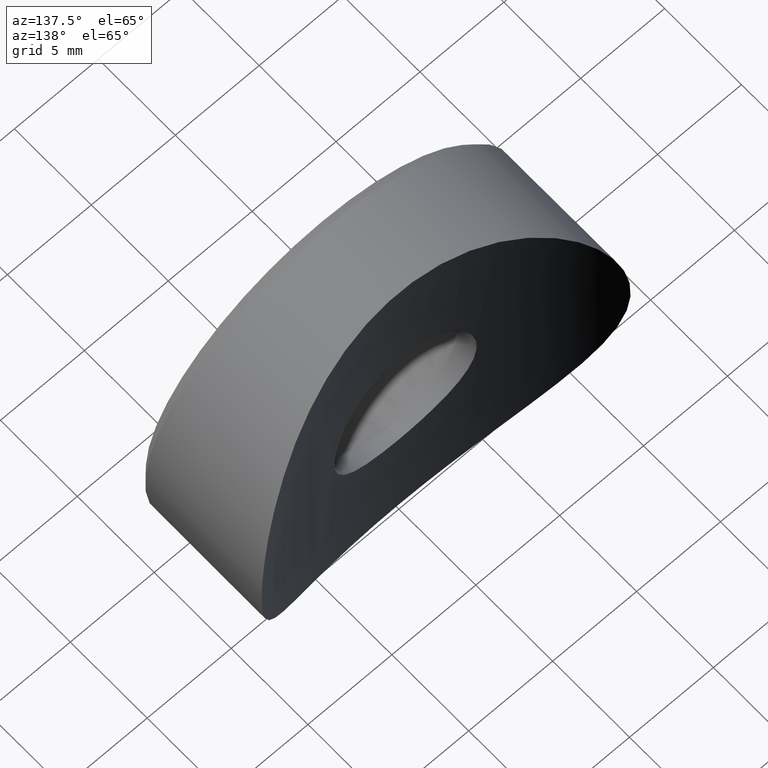
[diagram: clean part render]
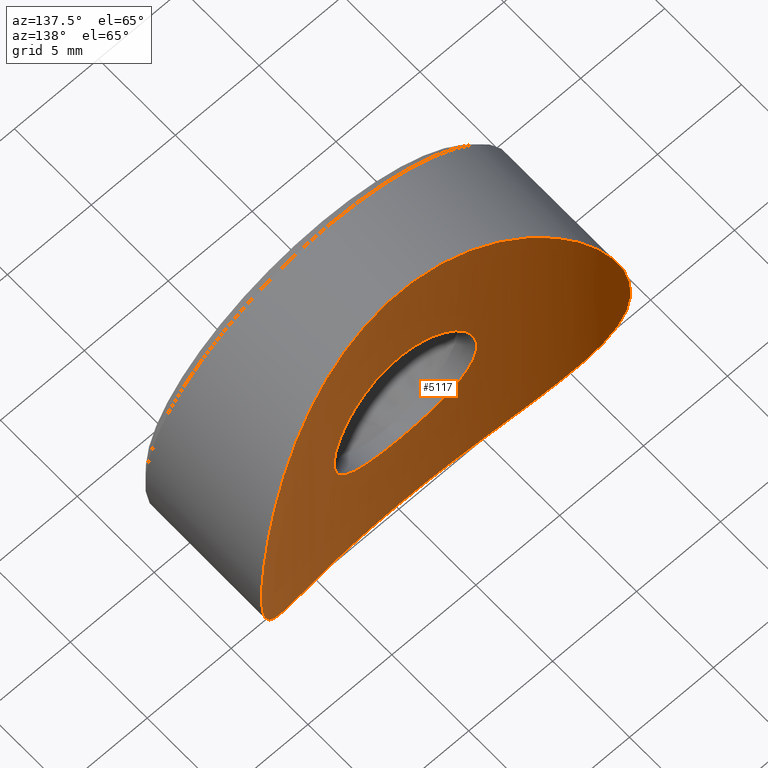
[diagram: same view with one face highlighted and labeled with its STEP entity id]
A machine part, auxiliary view. The second image highlights one B-rep face of the part: STEP entity #5117.
In plain terms, the highlighted cylindrical surface (partial cylindrical patch) has radius 21.2 mm, axis along (-0, -0, 1).
Its self-contained STEP definition (entity closure, byte-faithful):
#57 = CARTESIAN_POINT ( 'NONE',  ( 2.810210554180509579, 5.186154573832988390, -3.200255997920374629 ) ) ;
#64 = CARTESIAN_POINT ( 'NONE',  ( 0.7406937009818306272, 5.000000000000000888, -11.00000000000000000 ) ) ;
#105 = CARTESIAN_POINT ( 'NONE',  ( -10.98398630777729501, 8.067328638044862998, -0.6980624500910832531 ) ) ;
#151 = CARTESIAN_POINT ( 'NONE',  ( 3.819725345298614183, 5.346666967095663026, 1.884146675043101293 ) ) ;
#193 = CARTESIAN_POINT ( 'NONE',  ( -0.5525578668103006130, 5.005411021145239836, 4.223266058465389605 ) ) ;
#255 = CARTESIAN_POINT ( 'NONE',  ( -10.62777386024006887, 7.855522252781230286, 2.931035171921014371 ) ) ;
#261 = CARTESIAN_POINT ( 'NONE',  ( -0.3304821063437383133, 4.999424213438067532, 11.00110970196394433 ) ) ;
#425 = CARTESIAN_POINT ( 'NONE',  ( 8.030741142240314545, 6.578107402731796505, -7.525357395938277350 ) ) ;
#470 = CARTESIAN_POINT ( 'NONE',  ( 11.00093997453022254, 8.077656857097265330, 0.3368348829577760273 ) ) ;
#538 = CARTESIAN_POINT ( 'NONE',  ( -4.249801277299170899, 5.430330066556780189, 0.2836326168942768233 ) ) ;
#562 = CARTESIAN_POINT ( 'NONE',  ( 10.70620333068208119, 7.901795306539453279, -2.551291724373591752 ) ) ;
#582 = CARTESIAN_POINT ( 'NONE',  ( -2.598455551036930267, 5.158544096963465719, -3.374758883897539974 ) ) ;
#693 = CARTESIAN_POINT ( 'NONE',  ( 8.945724061720213172, 6.978607076919857377, 6.410945904303895659 ) ) ;
#727 = CARTESIAN_POINT ( 'NONE',  ( -10.97975971317067412, 8.064764334188854633, 0.7603854165196879400 ) ) ;
#1066 = CARTESIAN_POINT ( 'NONE',  ( 1.102370467402856269, 5.026929500373567450, -4.113907872993309844 ) ) ;
#1075 = FACE_OUTER_BOUND ( 'NONE', #7938, .T. ) ;
#1111 = CARTESIAN_POINT ( 'NONE',  ( 4.113202836554016528, 5.402772338602679802, -1.105615089143639818 ) ) ;
#1137 = CARTESIAN_POINT ( 'NONE',  ( 0.000000000000000000, 26.20000000000000284, -11.00000000000000000 ) ) ;
#1149 = ORIENTED_EDGE ( 'NONE', *, *, #3998, .T. ) ;
#1207 = CARTESIAN_POINT ( 'NONE',  ( 2.808420016093003291, 5.185896099792188352, 3.202074843122579395 ) ) ;
#1245 = CARTESIAN_POINT ( 'NONE',  ( 3.686998261433509505, 5.322492604036392017, 2.131890990882719716 ) ) ;
#1248 = CARTESIAN_POINT ( 'NONE',  ( -10.91283529454353562, 8.024418805323666248, -1.430130143669122500 ) ) ;
#1297 = CARTESIAN_POINT ( 'NONE',  ( 5.550346600703138122, 5.730090092932976553, -9.523878002328917347 ) ) ;
#1315 = CARTESIAN_POINT ( 'NONE',  ( -0.6984263354874409302, 5.008300497339214452, 10.98403708423493619 ) ) ;
#1455 = CARTESIAN_POINT ( 'NONE',  ( 0.7661881482282912881, 5.001238617810880527, 10.99761283690917146 ) ) ;
#1535 = CARTESIAN_POINT ( 'NONE',  ( 10.98332523577125208, 8.066927278961861347, 0.7083942231674656975 ) ) ;
#1601 = CARTESIAN_POINT ( 'NONE',  ( -8.719913155160499585, 6.871335287458406604, 6.743054531945021246 ) ) ;
#1606 = CARTESIAN_POINT ( 'NONE',  ( -0.2815391734600665163, 4.999999999999998224, -4.249999999999998224 ) ) ;
#1629 = CARTESIAN_POINT ( 'NONE',  ( 10.91148235597395910, 8.023605628825722036, 1.440419524102471094 ) ) ;
#1651 = CARTESIAN_POINT ( 'NONE',  ( -2.133031478875639930, 5.106280212341133939, -3.686617078743818610 ) ) ;
#1897 = FACE_BOUND ( 'NONE', #3806, .T. ) ;
#1967 = CARTESIAN_POINT ( 'NONE',  ( -3.563249721100179457, 5.290356493343431055, 10.43230328524458095 ) ) ;
#2151 = CARTESIAN_POINT ( 'NONE',  ( -10.43203426849924575, 7.741589596595918721, -3.563010612061605631 ) ) ;
#2197 = CARTESIAN_POINT ( 'NONE',  ( 3.376762351218155711, 5.270062170342488805, -2.595765663345576790 ) ) ;
#2200 = CARTESIAN_POINT ( 'NONE',  ( -8.944118814454265376, 6.977865798376565287, -6.413131222837708201 ) ) ;
#2293 = CARTESIAN_POINT ( 'NONE',  ( 1.107707186172353309, 5.027194874037162364, 4.112548186397214423 ) ) ;
#2295 = CARTESIAN_POINT ( 'NONE',  ( -1.843148062856518443, 5.077194980460737028, -10.85066172779794869 ) ) ;
#2340 = CARTESIAN_POINT ( 'NONE',  ( 0.5615337841234564475, 5.005675950349724346, 4.221936475721169479 ) ) ;
#2362 = DIRECTION ( 'NONE',  ( -0.000000000000000000, -0.000000000000000000, 1.000000000000000000 ) ) ;
#2438 = CARTESIAN_POINT ( 'NONE',  ( 3.927775296252041581, 5.364277933268157383, -10.28115287264342825 ) ) ;
#2454 = DIRECTION ( 'NONE',  ( 1.000000000000000000, 0.000000000000000000, 0.000000000000000000 ) ) ;
#2529 = CARTESIAN_POINT ( 'NONE',  ( 7.272722023686278625, 6.284397407287936943, -8.260317905458878229 ) ) ;
#2592 = CARTESIAN_POINT ( 'NONE',  ( 3.617143603080511749, 5.307918549273324516, 10.39460299725860359 ) ) ;
#2667 = CARTESIAN_POINT ( 'NONE',  ( 10.61521084714543584, 7.848634096434105700, -2.906794945843087508 ) ) ;
#2691 = CARTESIAN_POINT ( 'NONE',  ( -4.031182700728252577, 5.386507250273369962, 1.374787350965278598 ) ) ;
#2716 = CARTESIAN_POINT ( 'NONE',  ( 9.525308709443146782, 7.255308598689055977, -5.547356482762179297 ) ) ;
#2780 = CARTESIAN_POINT ( 'NONE',  ( -1.888731768045537107, 5.082746475481112469, -3.817305616495520582 ) ) ;
#2801 = CARTESIAN_POINT ( 'NONE',  ( 10.40012597654171067, 7.725890778498209599, -3.601324458944998863 ) ) ;
#2819 = CARTESIAN_POINT ( 'NONE',  ( -3.820044543335833875, 5.346727481232948165, -1.883346161087306792 ) ) ;
#3265 = CARTESIAN_POINT ( 'NONE',  ( 3.687455259479745617, 5.322560136854229462, -2.131477671697137755 ) ) ;
#3311 = CARTESIAN_POINT ( 'NONE',  ( 0.2815391734600680151, 5.000000000000000888, -4.249999999999999112 ) ) ;
#3313 = CARTESIAN_POINT ( 'NONE',  ( -6.749965422141849025, 6.093853175831468683, -8.714572992334876034 ) ) ;
#3362 = CARTESIAN_POINT ( 'NONE',  ( -2.130267222668005722, 5.106015862516931847, 3.688076469070612262 ) ) ;
#3410 = CARTESIAN_POINT ( 'NONE',  ( -1.103217097764207288, 5.026931393537534376, 4.113904280845685157 ) ) ;
#3458 = CARTESIAN_POINT ( 'NONE',  ( 4.923219424198027383, 5.568450330113947189, -9.863062565716964158 ) ) ;
#3502 = CARTESIAN_POINT ( 'NONE',  ( -5.535620454030974358, 5.726176660261271145, 9.532181099180055739 ) ) ;
#3682 = CARTESIAN_POINT ( 'NONE',  ( -11.00101006813254934, 8.077699400808828756, -0.3327468879133291813 ) ) ;
#3683 = CARTESIAN_POINT ( 'NONE',  ( 5.569820284397110299, 5.735324080467353092, 9.512730541801296624 ) ) ;
#3806 = EDGE_LOOP ( 'NONE', ( #1149 ) ) ;
#3845 = CARTESIAN_POINT ( 'NONE',  ( -2.806544054703445479, 5.185658808697253264, 3.203522183423413328 ) ) ;
#3849 = CARTESIAN_POINT ( 'NONE',  ( -1.797442739525138888, 5.073283405931716672, 10.85826478333871492 ) ) ;
#3868 = CARTESIAN_POINT ( 'NONE',  ( 10.41506932932829876, 7.734324446718769508, 3.557752419104349251 ) ) ;
#3886 = CARTESIAN_POINT ( 'NONE',  ( -3.816648409875244230, 5.346100860391350018, 1.890415071464895957 ) ) ;
#3930 = CARTESIAN_POINT ( 'NONE',  ( -2.812262242037815607, 5.186431550786033462, -3.198434901025083210 ) ) ;
#3976 = CARTESIAN_POINT ( 'NONE',  ( -10.99889762403681459, 8.076417225544075151, 0.3964770693584104833 ) ) ;
#3998 = EDGE_CURVE ( 'NONE', #13660, #13660, #6511, .T. ) ;
#4187 = CARTESIAN_POINT ( 'NONE',  ( 4.250164791211702209, 5.430404450830129015, 0.2754186577235205879 ) ) ;
#4284 = CARTESIAN_POINT ( 'NONE',  ( -10.90517051537184656, 8.019814301164606363, 1.486797017513220576 ) ) ;
#4362 = CARTESIAN_POINT ( 'NONE',  ( 3.201103768577770126, 5.242139479029234828, -2.809244822697025690 ) ) ;
#4364 = CARTESIAN_POINT ( 'NONE',  ( -10.01511374817991396, 7.514107995310277843, -4.563780506468198439 ) ) ;
#4406 = CARTESIAN_POINT ( 'NONE',  ( -1.370279305567333683, 5.042774277909884084, 4.032560367937328749 ) ) ;
#4461 = CARTESIAN_POINT ( 'NONE',  ( 8.267441144527145624, 6.676947024252424256, -7.264604639880495540 ) ) ;
#4495 = CARTESIAN_POINT ( 'NONE',  ( 8.046373666709609296, 6.584517496706517647, 7.508647219459643196 ) ) ;
#4569 = CARTESIAN_POINT ( 'NONE',  ( 2.924692728780287077, 5.199786486053920243, 10.61026256782288257 ) ) ;
#4595 = CARTESIAN_POINT ( 'NONE',  ( -9.503311465944445757, 7.248389956309825521, 5.551071626061271580 ) ) ;
#4681 = CARTESIAN_POINT ( 'NONE',  ( 7.301562166325803460, 6.289893972743327843, 8.257290047815160960 ) ) ;
#4843 = CARTESIAN_POINT ( 'NONE',  ( -4.114870442906261694, 5.403104215282811040, -1.098838732332860113 ) ) ;
#5117 = ADVANCED_FACE ( 'NONE', ( #1897, #1075 ), #6363, .F. ) ;
#5324 = CARTESIAN_POINT ( 'NONE',  ( -10.64351090047416193, 7.864696781815916360, -2.872213773439324491 ) ) ;
#5402 = CARTESIAN_POINT ( 'NONE',  ( 4.113667801120810097, 5.402865294487540382, 1.103457135563285840 ) ) ;
#5405 = CARTESIAN_POINT ( 'NONE',  ( -1.475810461039820831, 5.048227752373741772, -10.90680908830020357 ) ) ;
#5453 = CARTESIAN_POINT ( 'NONE',  ( 1.372619087959432216, 5.042914525104962742, 4.031840749812959146 ) ) ;
#5455 = CARTESIAN_POINT ( 'NONE',  ( -9.521391004410391545, 7.257475427095384291, -5.520029543384864290 ) ) ;
#5632 = CARTESIAN_POINT ( 'NONE',  ( 0.000000000000000000, 5.000000000000000888, -4.250000000000000000 ) ) ;
#5675 = CARTESIAN_POINT ( 'NONE',  ( 4.942988210309541941, 5.573332406475749679, 9.852844762403295320 ) ) ;
#5950 = CARTESIAN_POINT ( 'NONE',  ( 9.538256735574176304, 7.261854419881140998, 5.525077732636639816 ) ) ;
#5973 = CARTESIAN_POINT ( 'NONE',  ( -4.222865945203310822, 5.424763870147390143, -0.5540835049165534487 ) ) ;
#5998 = CARTESIAN_POINT ( 'NONE',  ( 9.875124846991392147, 7.437756601865980421, 4.899124854131734708 ) ) ;
#6020 = CARTESIAN_POINT ( 'NONE',  ( -3.202623579307927848, 5.242374177950092751, -2.807491218748115802 ) ) ;
#6363 = CYLINDRICAL_SURFACE ( 'NONE', #12410, 21.19999999999999929 ) ;
#6376 = CARTESIAN_POINT ( 'NONE',  ( 1.372682597147003358, 5.042914358949211362, -4.031846155124416242 ) ) ;
#6378 = CARTESIAN_POINT ( 'NONE',  ( -9.338251989776047424, 7.166220700876566596, -5.824307960938729600 ) ) ;
#6428 = CARTESIAN_POINT ( 'NONE',  ( 2.887231030859476633, 5.194556943376598568, -10.62060620305898517 ) ) ;
#6464 = CARTESIAN_POINT ( 'NONE',  ( 4.033224829934452416, 5.386905617714218053, 1.368724909466035200 ) ) ;
#6506 = CARTESIAN_POINT ( 'NONE',  ( 3.379771783012816222, 5.270561069558520551, 2.591535851878376207 ) ) ;
#6508 = CARTESIAN_POINT ( 'NONE',  ( -0.3703468504909177561, 5.000000000000003553, -11.00000000000000355 ) ) ;
#6511 = B_SPLINE_CURVE_WITH_KNOTS ( 'NONE', 3,
 ( #9619, #3311, #9518, #1066, #6376, #10686, #12791, #11594, #57, #4362, #2197, #3265, #7444, #11539, #1111, #10501, #8515, #4187, #11727, #5402, #6464, #151, #1245, #6506, #12839, #1207, #7579, #8657, #8614, #5453, #2293, #2340, #9711, #10735, #193, #3410, #4406, #9667, #3362, #11775, #3845, #11157, #9085, #12205, #3886, #2691, #7982, #9127, #538, #11245, #5973, #4843, #10054, #2819, #11200, #10229, #6020, #3930, #582, #1651, #2780, #11287, #13353, #7934, #1606, #10143 ),
 .UNSPECIFIED., .T., .F.,
 ( 4, 2, 2, 2, 2, 2, 2, 2, 2, 2, 2, 2, 2, 2, 2, 2, 2, 2, 2, 2, 2, 2, 2, 2, 2, 2, 2, 2, 2, 2, 2, 2, 4 ),
 ( 0.000000000000000000, 0.0008324699609963882212, 0.001664939921992776442, 0.002497409882989164772, 0.003329879843985552885, 0.004162349804981941431, 0.004994819765978329544, 0.005827289726974717657, 0.006659759687971105770, 0.007492229648967494750, 0.008324699609963882863, 0.009157169570960270108, 0.009989639531956659088, 0.01082210949295304807, 0.01165457945394943531, 0.01248704941494582256, 0.01331951937594220980, 0.01415198933693859358, 0.01498445929793498083, 0.01581692925893136287, 0.01664939921992774838, 0.01748186918092413736, 0.01831433914192051940, 0.01914680910291690838, 0.01997927906391329042, 0.02081174902490967593, 0.02164421898590606144, 0.02247668894690245042, 0.02330915890789883593, 0.02414162886889522838, 0.02497409882989161389, 0.02580656879088800287, 0.02663903875188438838 ),
 .UNSPECIFIED. ) ;
#6554 = CARTESIAN_POINT ( 'NONE',  ( -0.7406492708284738713, 5.009744588844895041, -10.98125401141253299 ) ) ;
#6711 = CARTESIAN_POINT ( 'NONE',  ( 1.490624953899859717, 5.040158390333101757, 10.92313522355307853 ) ) ;
#6883 = CARTESIAN_POINT ( 'NONE',  ( 9.861644229273718310, 7.430682611660816228, -4.925121358155288398 ) ) ;
#7327 = ORIENTED_EDGE ( 'NONE', *, *, #10539, .F. ) ;
#7401 = CARTESIAN_POINT ( 'NONE',  ( 1.626303258728256651E-16, 5.000000000000002665, -11.00000000000000178 ) ) ;
#7428 = CARTESIAN_POINT ( 'NONE',  ( 8.732449053060632238, 6.880461853132674221, 6.698512477491932238 ) ) ;
#7444 = CARTESIAN_POINT ( 'NONE',  ( 3.819021201753174388, 5.346541473923761778, -1.885238756090964696 ) ) ;
#7446 = CARTESIAN_POINT ( 'NONE',  ( -4.600097666025678933, 5.502339205330521565, -9.998397122419751426 ) ) ;
#7489 = CARTESIAN_POINT ( 'NONE',  ( -8.282596168350016441, 6.683363868181916523, -7.247406151188751089 ) ) ;
#7579 = CARTESIAN_POINT ( 'NONE',  ( 2.594624284595132835, 5.158104003117766290, 3.377410276777525144 ) ) ;
#7581 = CARTESIAN_POINT ( 'NONE',  ( -9.859481239499171323, 7.431229301258803766, -4.890628027837803593 ) ) ;
#7629 = CARTESIAN_POINT ( 'NONE',  ( -2.919322082857843892, 5.189576270886922416, -10.63079382865562650 ) ) ;
#7695 = CARTESIAN_POINT ( 'NONE',  ( -6.716737983236949816, 6.082694841941218122, 8.740194573531734790 ) ) ;
#7713 = CARTESIAN_POINT ( 'NONE',  ( 0.000000000000000000, 5.000000000000000888, -11.00000000000000000 ) ) ;
#7770 = CARTESIAN_POINT ( 'NONE',  ( 6.726511180750548213, 6.093340416670678827, -8.710877387972685071 ) ) ;
#7934 = CARTESIAN_POINT ( 'NONE',  ( -0.5594163357959245353, 5.005604551952165693, -4.222297069069299802 ) ) ;
#7938 = EDGE_LOOP ( 'NONE', ( #7327 ) ) ;
#7965 = CARTESIAN_POINT ( 'NONE',  ( -9.997199513765075096, 7.504522913268830919, 4.602503198581874955 ) ) ;
#7982 = CARTESIAN_POINT ( 'NONE',  ( -4.112940117760708780, 5.402721284368402266, 1.105916736726825000 ) ) ;
#8006 = CARTESIAN_POINT ( 'NONE',  ( 10.27677230834422595, 7.656732314538135853, -3.938929137060056096 ) ) ;
#8515 = CARTESIAN_POINT ( 'NONE',  ( 4.249833701182157419, 5.430336701312442393, -0.2804811968282863166 ) ) ;
#8614 = CARTESIAN_POINT ( 'NONE',  ( 1.886260967193333915, 5.082510364243387535, 3.818617885587111349 ) ) ;
#8616 = CARTESIAN_POINT ( 'NONE',  ( -5.866171023575696530, 5.825436670913803461, -9.312061610184477090 ) ) ;
#8657 = CARTESIAN_POINT ( 'NONE',  ( 2.135072001165618349, 5.106519256612530810, 3.685165248090223944 ) ) ;
#8659 = CARTESIAN_POINT ( 'NONE',  ( -8.733124148556850486, 6.880760165170922704, -6.697674060011289399 ) ) ;
#8787 = CARTESIAN_POINT ( 'NONE',  ( 8.282905433917242988, 6.683501895951066807, 7.247014105698896813 ) ) ;
#9062 = CARTESIAN_POINT ( 'NONE',  ( 10.85758155682542991, 7.991217332315730282, 1.801326959827177943 ) ) ;
#9085 = CARTESIAN_POINT ( 'NONE',  ( -3.377867695080260191, 5.270251185721046561, 2.594051491710704482 ) ) ;
#9090 = CARTESIAN_POINT ( 'NONE',  ( -2.869170902224891684, 5.182776678979848839, 10.64418697513752576 ) ) ;
#9127 = CARTESIAN_POINT ( 'NONE',  ( -4.221741524338718854, 5.424534255771239266, 0.5623404151687568797 ) ) ;
#9283 = CARTESIAN_POINT ( 'NONE',  ( 10.62660936043144133, 7.855245537905013897, 2.864689321924585474 ) ) ;
#9518 = CARTESIAN_POINT ( 'NONE',  ( 0.5582333046488122674, 5.005601905052037282, -4.222302003938042780 ) ) ;
#9537 = CARTESIAN_POINT ( 'NONE',  ( -9.316623533679065261, 7.155602735120614177, 5.858919985396516594 ) ) ;
#9568 = CARTESIAN_POINT ( 'NONE',  ( -3.607667810288317956, 5.298302064107291542, -10.41633847323307549 ) ) ;
#9575 = CARTESIAN_POINT ( 'NONE',  ( 2.534682675223399517, 5.149026273689956135, -10.71015019809598101 ) ) ;
#9619 = CARTESIAN_POINT ( 'NONE',  ( 2.710505431213761085E-16, 4.999999999999999112, -4.249999999999998224 ) ) ;
#9667 = CARTESIAN_POINT ( 'NONE',  ( -1.882053045966108673, 5.082146369412742892, 3.820613148238725110 ) ) ;
#9711 = CARTESIAN_POINT ( 'NONE',  ( 0.2794551810172385409, 5.000022643127356226, 4.249887050744065142 ) ) ;
#10054 = CARTESIAN_POINT ( 'NONE',  ( -4.032771650087032533, 5.386819851995481301, -1.369848858015539905 ) ) ;
#10137 = CARTESIAN_POINT ( 'NONE',  ( -8.271575633887181311, 6.672854846020938702, 7.285564790806043689 ) ) ;
#10143 = CARTESIAN_POINT ( 'NONE',  ( 2.710505431213761085E-16, 4.999999999999999112, -4.249999999999998224 ) ) ;
#10229 = CARTESIAN_POINT ( 'NONE',  ( -3.380969728401652663, 5.270748725609802676, -2.590157803694792094 ) ) ;
#10245 = CARTESIAN_POINT ( 'NONE',  ( 6.758495176017437878, 6.096552498446191848, 8.708483410855748730 ) ) ;
#10501 = CARTESIAN_POINT ( 'NONE',  ( 4.222665826051291482, 5.424721198113262588, -0.5567006569752480649 ) ) ;
#10523 = CARTESIAN_POINT ( 'NONE',  ( -4.906659197807594630, 5.564238912340652377, 9.871899306962941267 ) ) ;
#10535 = B_SPLINE_CURVE_WITH_KNOTS ( 'NONE', 3,
 ( #7401, #64, #10605, #9575, #6428, #12977, #2438, #3458, #1297, #10865, #7770, #2529, #13073, #425, #4461, #12099, #11087, #2716, #6883, #8006, #2801, #2667, #562, #11043, #12057, #470, #1535, #1629, #9062, #11131, #9283, #3868, #11224, #5998, #5950, #693, #7428, #8787, #4495, #4681, #10245, #3683, #5675, #12026, #2592, #4569, #11885, #6711, #1455, #261, #1315, #12814, #3849, #9090, #1967, #10523, #3502, #7695, #11994, #10137, #1601, #9537, #4595, #12326, #7965, #10786, #255, #11133, #4284, #727, #3976, #3682, #105, #1248, #11641, #5324, #2151, #4364, #7581, #5455, #6378, #2200, #8659, #7489, #12793, #12694, #3313, #8616, #10689, #11729, #7446, #9568, #7629, #2295, #5405, #6554, #6508, #11777 ),
 .UNSPECIFIED., .T., .F.,
 ( 4, 2, 2, 2, 2, 2, 2, 2, 2, 2, 2, 2, 2, 2, 2, 2, 2, 2, 2, 2, 2, 2, 2, 2, 2, 2, 2, 2, 2, 2, 2, 2, 2, 2, 2, 2, 2, 2, 2, 2, 2, 2, 2, 2, 2, 2, 2, 2, 4 ),
 ( 0.000000000000000000, 0.002188003082304654841, 0.003282004623456982045, 0.004376006164609308816, 0.006564009246913963223, 0.007658010788066288259, 0.008752012329218615896, 0.009846013870370942667, 0.01094001541152327117, 0.01312801849382792124, 0.01422202003498024628, 0.01531602157613257305, 0.01750402465843722832, 0.01859802619958955336, 0.01969202774074188186, 0.02078602928189421037, 0.02188003082304653887, 0.02406803390535119241, 0.02516203544650352092, 0.02625603698765584942, 0.02844404006996050296, 0.03063204315226515997, 0.03172604469341748501, 0.03282004623456981351, 0.03500804931687447052, 0.03610205085802679903, 0.03719605239917912753, 0.03938405548148377761, 0.04157205856378843462, 0.04376006164609309163, 0.04594806472839774864, 0.04704206626955007020, 0.04813606781070239871, 0.05032407089300706265, 0.05141807243415939116, 0.05251207397531171273, 0.05360607551646404123, 0.05470007705761636974, 0.05688808013992101981, 0.05798208168107334831, 0.05907608322222567682, 0.06017008476337800532, 0.06126408630453033383, 0.06345208938683499778, 0.06454609092798732628, 0.06564009246913965478, 0.06782809555144431179, 0.06892209709259664030, 0.07001609863374896880 ),
 .UNSPECIFIED. ) ;
#10539 = EDGE_CURVE ( 'NONE', #11357, #11357, #10535, .T. ) ;
#10605 = CARTESIAN_POINT ( 'NONE',  ( 1.466589509284834225, 5.038677745217595927, -10.92597132206872068 ) ) ;
#10686 = CARTESIAN_POINT ( 'NONE',  ( 1.887025309432519116, 5.082574356308747987, -3.818268771663787753 ) ) ;
#10689 = CARTESIAN_POINT ( 'NONE',  ( -5.558885652228839014, 5.739157838741399509, -9.498899393929182366 ) ) ;
#10735 = CARTESIAN_POINT ( 'NONE',  ( -0.2760090558178462938, 4.999977496917206388, 4.250112250680679438 ) ) ;
#10786 = CARTESIAN_POINT ( 'NONE',  ( -10.41266210851994423, 7.730676398745607969, 3.617264582210855117 ) ) ;
#10865 = CARTESIAN_POINT ( 'NONE',  ( 6.439472292355020500, 5.999280053823913050, -8.925292515866772192 ) ) ;
#11043 = CARTESIAN_POINT ( 'NONE',  ( 10.92364341223902002, 8.030180142637464158, -1.483755871195856724 ) ) ;
#11087 = CARTESIAN_POINT ( 'NONE',  ( 8.930807154490498334, 6.971664316832415942, -6.431706698735612626 ) ) ;
#11131 = CARTESIAN_POINT ( 'NONE',  ( 10.71514647470200643, 7.907037431630823399, 2.513462174968426499 ) ) ;
#11133 = CARTESIAN_POINT ( 'NONE',  ( -10.84942384772801205, 7.986341322155988465, 1.850712909451587951 ) ) ;
#11157 = CARTESIAN_POINT ( 'NONE',  ( -3.198658275679501894, 5.241760320320277167, 2.812086262208933984 ) ) ;
#11200 = CARTESIAN_POINT ( 'NONE',  ( -3.689731481555346360, 5.322969636345511013, -2.127382275574554171 ) ) ;
#11224 = CARTESIAN_POINT ( 'NONE',  ( 10.29126172107529946, 7.664766006145137922, 3.901257612403952191 ) ) ;
#11245 = CARTESIAN_POINT ( 'NONE',  ( -4.250196614232329750, 5.430410962633926530, -0.2776456343399051896 ) ) ;
#11287 = CARTESIAN_POINT ( 'NONE',  ( -1.377598965828539024, 5.043253435374856153, -4.030055948830091772 ) ) ;
#11357 = VERTEX_POINT ( 'NONE', #7713 ) ;
#11539 = CARTESIAN_POINT ( 'NONE',  ( 4.031208825706436016, 5.386518531447738845, -1.374191948184168677 ) ) ;
#11594 = CARTESIAN_POINT ( 'NONE',  ( 2.592298349430368187, 5.157806901093226593, -3.379275003102179653 ) ) ;
#11641 = CARTESIAN_POINT ( 'NONE',  ( -10.85830687869648692, 7.991647827827236483, -1.797402512033477340 ) ) ;
#11727 = CARTESIAN_POINT ( 'NONE',  ( 4.222403944353834149, 5.424668963698456636, 0.5578399041919098744 ) ) ;
#11729 = CARTESIAN_POINT ( 'NONE',  ( -4.924175399756159699, 5.577202704896468077, -9.842905872910705511 ) ) ;
#11775 = CARTESIAN_POINT ( 'NONE',  ( -2.593009359740197972, 5.157887280677808661, 3.378794007036495461 ) ) ;
#11777 = CARTESIAN_POINT ( 'NONE',  ( 1.626303258728256651E-16, 5.000000000000002665, -11.00000000000000178 ) ) ;
#11885 = CARTESIAN_POINT ( 'NONE',  ( 2.567294448863505441, 5.152928609004067795, 10.70248619149486835 ) ) ;
#11994 = CARTESIAN_POINT ( 'NONE',  ( -7.272363231969766417, 6.279129176816129920, 8.283184822907376343 ) ) ;
#12026 = CARTESIAN_POINT ( 'NONE',  ( 3.954731134231094458, 5.369415784208213971, 10.27073620758329930 ) ) ;
#12057 = CARTESIAN_POINT ( 'NONE',  ( 10.99800208367776477, 8.075873664732334589, -0.7619070900029055737 ) ) ;
#12099 = CARTESIAN_POINT ( 'NONE',  ( 8.716991664604597290, 6.873483581067159953, -6.718565320900548699 ) ) ;
#12205 = CARTESIAN_POINT ( 'NONE',  ( -3.685757786510325040, 5.322271073379255313, 2.134076579294158726 ) ) ;
#12326 = CARTESIAN_POINT ( 'NONE',  ( -9.843093480281877916, 7.422620981476626412, 4.923498324854598707 ) ) ;
#12410 = AXIS2_PLACEMENT_3D ( 'NONE', #1137, #2362, #2454 ) ;
#12694 = CARTESIAN_POINT ( 'NONE',  ( -7.293162379780823379, 6.286726357215658645, -8.265048674629083436 ) ) ;
#12791 = CARTESIAN_POINT ( 'NONE',  ( 2.130855865990993969, 5.106082525464576527, -3.687677257762997041 ) ) ;
#12793 = CARTESIAN_POINT ( 'NONE',  ( -8.042678600626141261, 6.582979530657690148, -7.512698097221123916 ) ) ;
#12814 = CARTESIAN_POINT ( 'NONE',  ( -1.434858456084544764, 5.045399829630942357, 10.91228900024890969 ) ) ;
#12839 = CARTESIAN_POINT ( 'NONE',  ( 3.203316912745056477, 5.242458482158687261, 2.807003214154159654 ) ) ;
#12977 = CARTESIAN_POINT ( 'NONE',  ( 3.585325968123272755, 5.302388205038666591, -10.40571078054324161 ) ) ;
#13073 = CARTESIAN_POINT ( 'NONE',  ( 7.533381166891571112, 6.381835589875548109, -8.023214781158337416 ) ) ;
#13353 = CARTESIAN_POINT ( 'NONE',  ( -1.107972717409017704, 5.027193348484397362, -4.112558283319988739 ) ) ;
#13660 = VERTEX_POINT ( 'NONE', #5632 ) ;